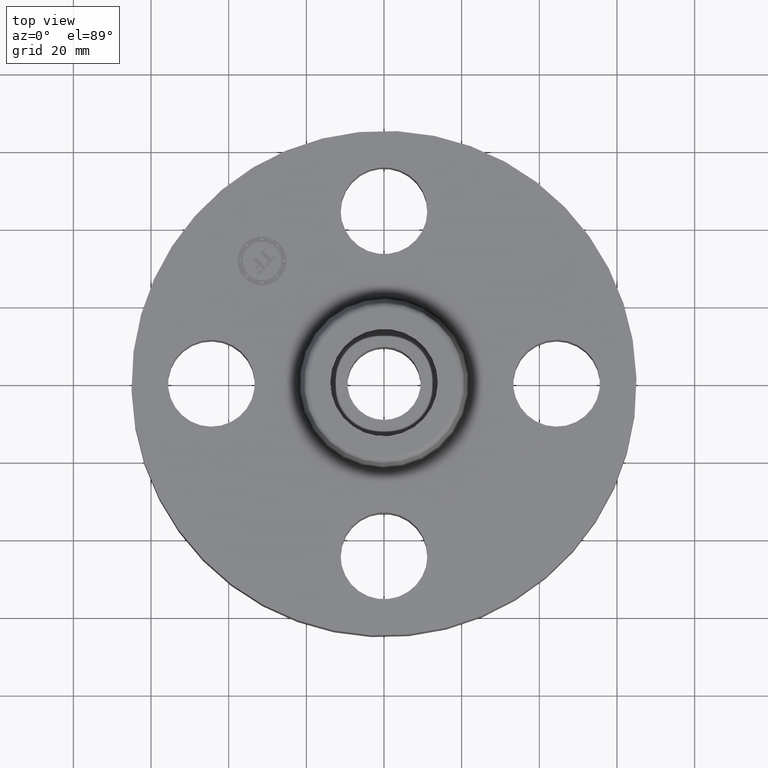
[diagram: clean part render]
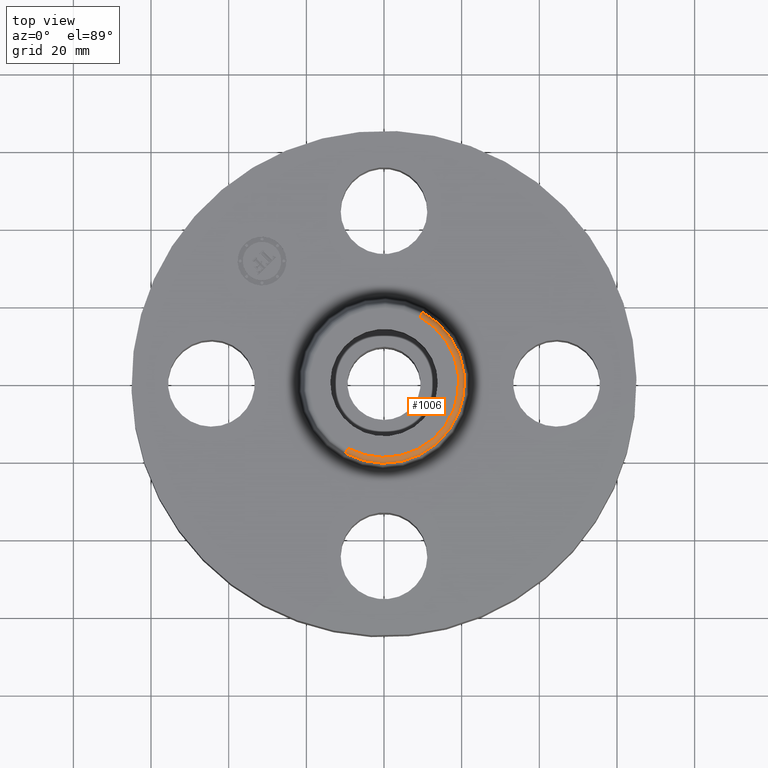
[diagram: same view with one face highlighted and labeled with its STEP entity id]
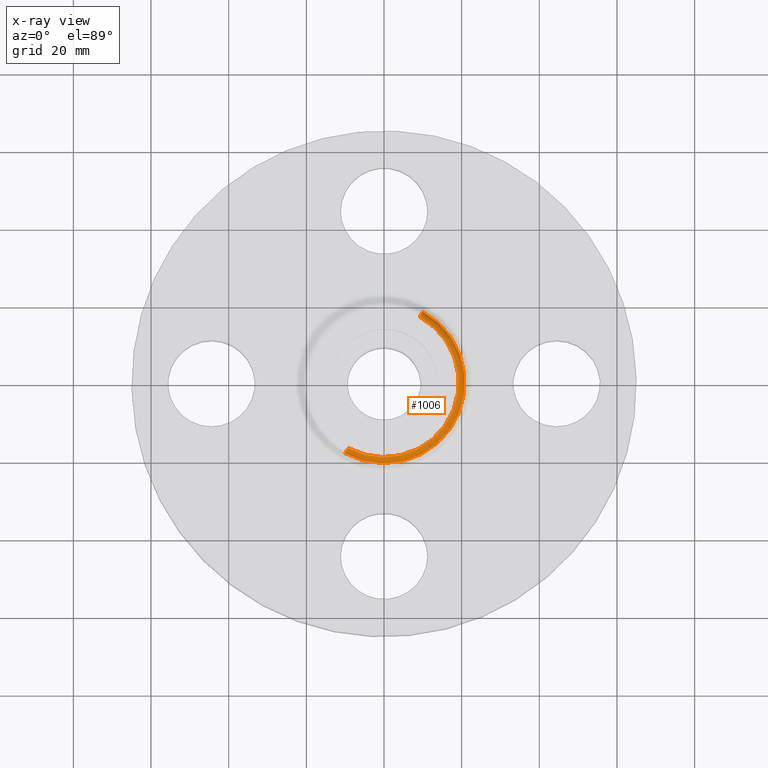
[diagram: x-ray of the same camera — body ghosted, the highlighted face saturated]
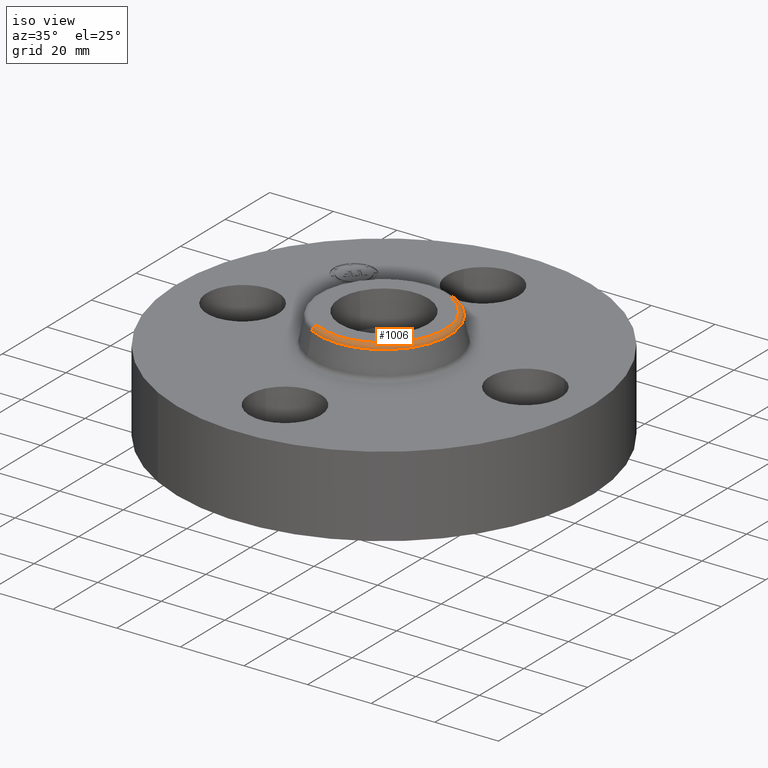
[diagram: same view with one face highlighted and labeled with its STEP entity id]
A machine part, top view. The second image highlights one B-rep face of the part: STEP entity #1006.
The next image is the same camera in x-ray: the body ghosted, the highlighted face saturated — about 0% of this face is hidden behind the body in this view.
A second angle (iso view) of the same face is appended — the face is thin or edge-on in the first view.
In plain terms, the highlighted toroidal blend (fillet) surface has major radius 19.2443 mm and minor (blend) radius 1.524 mm.
Its self-contained STEP definition (entity closure, byte-faithful):
#904=AXIS2_PLACEMENT_3D('Circle Axis2P3D',#902,#903,$) ;
#979=AXIS2_PLACEMENT_3D('Torus Axis2P3D',#976,#977,#978) ;
#983=AXIS2_PLACEMENT_3D('Circle Axis2P3D',#981,#982,$) ;
#990=AXIS2_PLACEMENT_3D('Circle Axis2P3D',#988,#989,$) ;
#997=AXIS2_PLACEMENT_3D('Circle Axis2P3D',#995,#996,$) ;
#899=CARTESIAN_POINT('Vertex',(0.391565168043,0.716755232353,1.33041889067)) ;
#902=CARTESIAN_POINT('Axis2P3D Location',(0.,0.,1.33041889067)) ;
#906=CARTESIAN_POINT('Vertex',(-0.391565168043,-0.716755232353,1.33041889067)) ;
#976=CARTESIAN_POINT('Axis2P3D Location',(0.,0.,1.32000000001)) ;
#981=CARTESIAN_POINT('Axis2P3D Location',(0.363236648798,0.664900225701,1.32000000001)) ;
#985=CARTESIAN_POINT('Vertex',(0.363236648798,0.664900225701,1.38000000001)) ;
#988=CARTESIAN_POINT('Axis2P3D Location',(0.,0.,1.38000000001)) ;
#992=CARTESIAN_POINT('Vertex',(-0.363236648798,-0.664900225701,1.38000000001)) ;
#995=CARTESIAN_POINT('Axis2P3D Location',(-0.363236648798,-0.664900225701,1.32000000001)) ;
#903=DIRECTION('Axis2P3D Direction',(0.,0.,-0.0393700787402)) ;
#977=DIRECTION('Axis2P3D Direction',(0.,0.,-0.0393700787402)) ;
#978=DIRECTION('Axis2P3D XDirection',(-0.0188750212049,-0.0345504945626,0.)) ;
#982=DIRECTION('Axis2P3D Direction',(-0.0345504945626,0.0188750212049,0.)) ;
#989=DIRECTION('Axis2P3D Direction',(0.,0.,-0.0393700787402)) ;
#996=DIRECTION('Axis2P3D Direction',(0.0345504945626,-0.0188750212049,0.)) ;
#1001=ORIENTED_EDGE('',*,*,#908,.F.) ;
#1002=ORIENTED_EDGE('',*,*,#987,.T.) ;
#1003=ORIENTED_EDGE('',*,*,#994,.T.) ;
#1004=ORIENTED_EDGE('',*,*,#999,.F.) ;
#1006=ADVANCED_FACE('PartBody',(#1005),#980,.T.) ;
#905=CIRCLE('generated circle',#904,0.816738234644) ;
#984=CIRCLE('generated circle',#983,0.0600000000002) ;
#991=CIRCLE('generated circle',#990,0.757649769463) ;
#998=CIRCLE('generated circle',#997,0.0600000000002) ;
#980=TOROIDAL_SURFACE('homeo Torus',#979,0.757649769463,0.0600000000002) ;
#908=EDGE_CURVE('',#900,#907,#905,.T.) ;
#987=EDGE_CURVE('',#900,#986,#984,.F.) ;
#994=EDGE_CURVE('',#986,#993,#991,.T.) ;
#999=EDGE_CURVE('',#907,#993,#998,.F.) ;
#1000=EDGE_LOOP('',(#1001,#1002,#1003,#1004)) ;
#1005=FACE_OUTER_BOUND('',#1000,.T.) ;
#900=VERTEX_POINT('',#899) ;
#907=VERTEX_POINT('',#906) ;
#986=VERTEX_POINT('',#985) ;
#993=VERTEX_POINT('',#992) ;